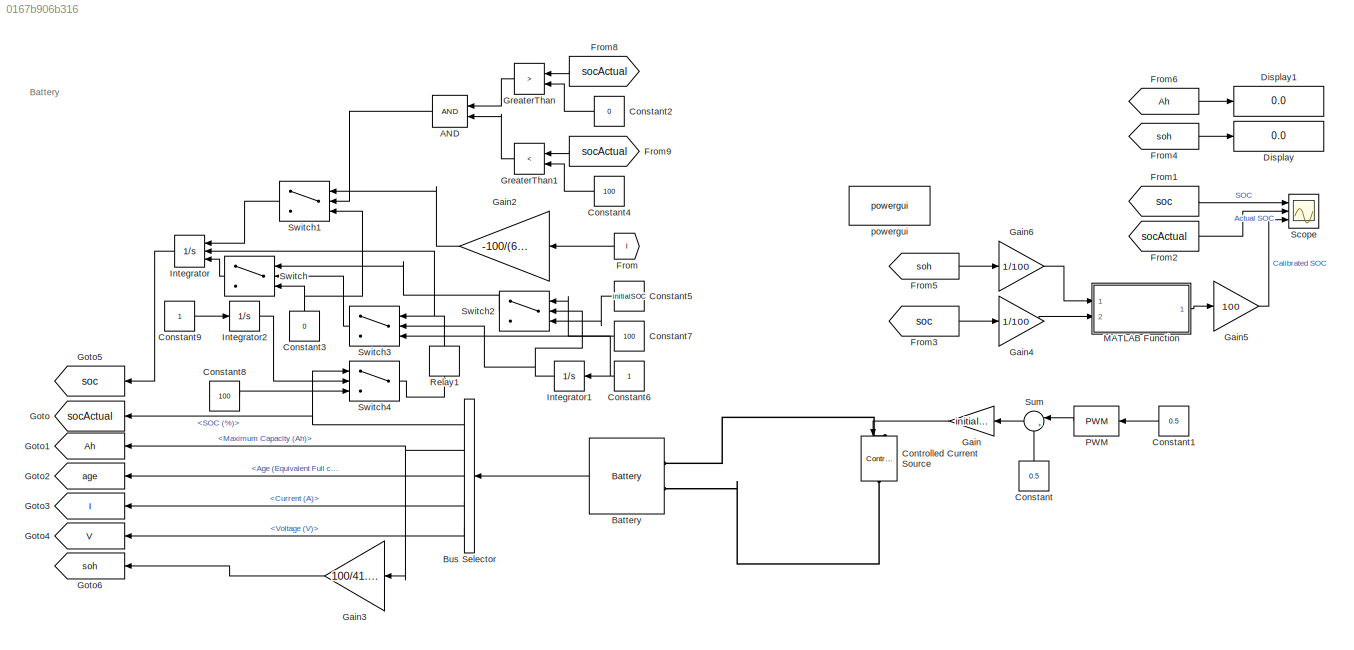
MODEL slx_0167b906b316
KIND model
CONFIG AbsTol = auto
CONFIG EnableMultiTasking = off
CONFIG FixedStep = auto
CONFIG MaxStep = auto
CONFIG MinStep = auto
CONFIG RelTol = 1e-3
CONFIG SampleTimeConstraint = Unconstrained
CONFIG SolverName = VariableStepAuto
CONFIG StartTime = 0.0
CONFIG StopTime = 60*30*5
BLOCK [Logic] AND
  AllPortsSameDT = off
  IconShape = distinctive
  NameLocation = top
  OutDataTypeStr = boolean
  Ports = [2, 1]
BLOCK [Reference] Battery  REF=spsBatteryLib/Battery
  Ports = [0, 1, 0, 0, 0, 2]
  SourceBlock = spsBatteryLib/Battery
  SourceProductBaseCode = PS
  SourceType = Battery
BLOCK [BusSelector] Bus Selector
  NameLocation = top
  OutputSignals = SOC (%),Maximum Capacity  (Ah),Age (Equivalent Full cycles),Current (A),Voltage (V)
  Ports = [1, 5]
BLOCK [Constant] Constant
  NameLocation = right
  SampleTime = T
  Value = 0.5
BLOCK [Constant] Constant1
  NameLocation = top
  SampleTime = T
  Value = 0.5
BLOCK [Constant] Constant2
  NameLocation = top
  SampleTime = T
  Value = 0
BLOCK [Constant] Constant3
  NameLocation = right
  SampleTime = T
  Value = 0
BLOCK [Constant] Constant4
  NameLocation = top
  SampleTime = T
  Value = 100
BLOCK [Constant] Constant5
  NameLocation = top
  SampleTime = T
  Value = initialSOC
BLOCK [Constant] Constant6
  NameLocation = top
  SampleTime = T
BLOCK [Constant] Constant7
  NameLocation = top
  SampleTime = T
  Value = 100
BLOCK [Constant] Constant8
  SampleTime = T
  Value = 100
BLOCK [Constant] Constant9
  SampleTime = T
BLOCK [Reference] Controlled Current Source  REF=spsControlledCurrentSourceLib/Controlled Current Source
  NameLocation = top
  Ports = [1, 0, 0, 0, 0, 1, 1]
  SourceBlock = spsControlledCurrentSourceLib/Controlled Current Source
  SourceProductBaseCode = PS
  SourceType = Controlled Current Source
BLOCK [Display] Display
  Decimation = 1
  Ports = [1]
BLOCK [Display] Display1
  Decimation = 1
  Ports = [1]
BLOCK [From] From
  GotoTag = I
  NameLocation = top
BLOCK [From] From1
  GotoTag = soc
  NameLocation = top
BLOCK [From] From2
  GotoTag = socActual
  NameLocation = top
BLOCK [From] From3
  GotoTag = soc
  NameLocation = top
BLOCK [From] From4
  GotoTag = soh
  NameLocation = top
BLOCK [From] From5
  GotoTag = soh
  NameLocation = top
BLOCK [From] From6
  GotoTag = Ah
  NameLocation = top
BLOCK [From] From8
  GotoTag = socActual
BLOCK [From] From9
  GotoTag = socActual
BLOCK [Gain] Gain
  Gain = initialCurrent
  NameLocation = top
BLOCK [Gain] Gain2
  Gain = -100/(60*60*40)
BLOCK [Gain] Gain3
  Gain = 100/41.36
  NameLocation = top
BLOCK [Gain] Gain4
  Gain = 1/100
BLOCK [Gain] Gain5
  Gain = 100
BLOCK [Gain] Gain6
  Gain = 1/100
BLOCK [Goto] Goto
  GotoTag = socActual
  NameLocation = top
BLOCK [Goto] Goto1
  GotoTag = Ah
  NameLocation = top
BLOCK [Goto] Goto2
  GotoTag = age
  NameLocation = top
BLOCK [Goto] Goto3
  GotoTag = I
  NameLocation = top
BLOCK [Goto] Goto4
  GotoTag = V
  NameLocation = top
BLOCK [Goto] Goto5
  GotoTag = soc
BLOCK [Goto] Goto6
  GotoTag = soh
  NameLocation = top
BLOCK [RelationalOperator] GreaterThan
  InputSameDT = off
  NameLocation = top
  Operator = >
  OutDataTypeStr = boolean
  Ports = [2, 1]
  RndMeth = Simplest
BLOCK [RelationalOperator] GreaterThan1
  InputSameDT = off
  NameLocation = top
  Operator = <
  OutDataTypeStr = boolean
  Ports = [2, 1]
  RndMeth = Simplest
BLOCK [Integrator] Integrator
  ExternalReset = either
  InitialCondition = 100
  InitialConditionSource = external
  LowerSaturationLimit = 0
  Ports = [3, 1]
  UpperSaturationLimit = 36.49*60*60
BLOCK [Integrator] Integrator1
  NameLocation = top
  Ports = [1, 1]
BLOCK [Integrator] Integrator2
  Ports = [1, 1]
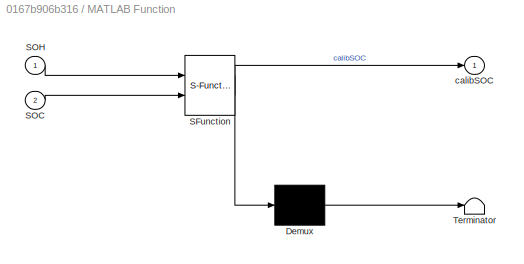
BLOCK [SubSystem] MATLAB Function
  ErrorFcn = Stateflow.Translate.translate
  PermitHierarchicalResolution = ExplicitOnly
  Ports = [2, 1]
  RequestExecContextInheritance = off
  SFBlockType = MATLAB Function
  TreatAsAtomicUnit = on
BLOCK [Demux] MATLAB Function/ Demux 
  Outputs = 1
  Ports = [1, 1]
BLOCK [S-Function] MATLAB Function/ SFunction 
  EnableBusSupport = on
  FunctionName = sf_sfun
  PortCounts = [2 2]
  Ports = [2, 2]
  SFcnIsStateOwnerBlock = off
  SFunctionDeploymentMode = off
  Tag = Stateflow S-Function 2
BLOCK [Terminator] MATLAB Function/ Terminator 
BLOCK [Inport] MATLAB Function/SOC
  Port = 2
BLOCK [Inport] MATLAB Function/SOH
BLOCK [Outport] MATLAB Function/calibSOC
BLOCK [Reference] PWM  REF=simulink/Discontinuities/PWM
  DisableCoverage = on
  NameLocation = top
  Ports = [1, 1]
  SourceBlock = simulink/Discontinuities/PWM
  SourceProductBaseCode = SL
  SourceType = PWM
BLOCK [Relay] Relay1
  NameLocation = right
  OffSwitchValue = 0.0001
  OnSwitchValue = 99.9999
BLOCK [Scope] Scope
  Floating = off
  NumInputPorts = 3
  Ports = [3]
  ScopeSpecificationString = Simulink.scopes.TimeScopeBlockCfg('CurrentConfiguration', extmgr.ConfigurationSet(extmgr.Configuration('Core','General UI',true),extmgr.Configuration('Core','Source UI',true),extmgr.Configuration('Sources','WiredSimulink',true),extmgr.Configuration('Visuals','Time Domain',true,'SerializedDisplays',{struct('MinYLimReal','-12.5','MaxYLimReal','112.5','YLabelReal','','MinYLimMag','0.00000','MaxYLimMa...<+1459ch>
BLOCK [Sum] Sum
  Inputs = |+-
  NameLocation = top
  Ports = [2, 1]
BLOCK [Switch] Switch
  Criteria = u2 ~= 0
  InputSameDT = off
  SaturateOnIntegerOverflow = off
  Threshold = 0.5
BLOCK [Switch] Switch1
  Criteria = u2 > Threshold
  InputSameDT = off
  SaturateOnIntegerOverflow = off
  Threshold = 0.5
BLOCK [Switch] Switch2
  Criteria = u2 ~= 0
  InputSameDT = off
  SaturateOnIntegerOverflow = off
BLOCK [Switch] Switch3
  Criteria = u2 ~= 0
  InputSameDT = off
  SaturateOnIntegerOverflow = off
BLOCK [Switch] Switch4
  Criteria = u2 ~= 0
  InputSameDT = off
  NameLocation = top
  SaturateOnIntegerOverflow = off
BLOCK [Reference] powergui  REF=spspowerguiLib/powergui
  Ports = []
  Priority = 1
  SourceBlock = spspowerguiLib/powergui
  SourceProductBaseCode = PS
  SourceType = PSB option menu block
ANNOTATION (root): Battery
LINE AND:1 -> Switch1:2
LINE Battery:1 -> Bus Selector:1
NET Bus Selector:1 -> Goto:1, Switch4:1
NET Bus Selector:2 -> Gain3:1, Goto1:1
LINE Bus Selector:3 -> Goto2:1
LINE Bus Selector:4 -> Goto3:1
LINE Bus Selector:5 -> Goto4:1
LINE Constant1:1 -> PWM:1
LINE Constant2:1 -> GreaterThan:2
NET Constant3:1 -> Switch1:3, Switch:3
LINE Constant4:1 -> GreaterThan1:2
LINE Constant5:1 -> Switch2:3
NET Constant6:1 -> Integrator1:1, Switch3:3
LINE Constant7:1 -> Switch2:1
LINE Constant8:1 -> Switch4:3
LINE Constant9:1 -> Integrator2:1
LINE Constant:1 -> Sum:2
LINE From1:1 -> Scope:1
LINE From2:1 -> Scope:2
LINE From3:1 -> Gain4:1
LINE From4:1 -> Display:1
LINE From5:1 -> Gain6:1
LINE From6:1 -> Display1:1
LINE From8:1 -> GreaterThan:1
LINE From9:1 -> GreaterThan1:1
LINE From:1 -> Gain2:1
LINE Gain2:1 -> Switch1:1
LINE Gain3:1 -> Goto6:1
LINE Gain4:1 -> MATLAB Function:2
LINE Gain5:1 -> Scope:3
LINE Gain6:1 -> MATLAB Function:1
LINE Gain:1 -> Controlled Current Source:1
LINE GreaterThan1:1 -> AND:2
LINE GreaterThan:1 -> AND:1
NET Integrator1:1 -> Switch2:2, Switch3:2
LINE Integrator2:1 -> Switch4:2
LINE Integrator:1 -> Goto5:1
LINE MATLAB Function:1 -> Gain5:1
LINE PWM:1 -> Sum:1
NET Relay1:1 -> Integrator:2, Switch3:1
LINE Sum:1 -> Gain:1
LINE Switch1:1 -> Integrator:1
LINE Switch2:1 -> Switch:1
LINE Switch3:1 -> Switch:2
LINE Switch4:1 -> Relay1:1
LINE Switch:1 -> Integrator:3
PLINE Battery:LConn1 -- Controlled Current Source:LConn1
PLINE Battery:LConn2 -- Controlled Current Source:RConn1
note: NET lines group one-source signal fan-out (src -> all destinations, sorted); 1:1 wires keep LINE
CHART MATLAB Function states=1 transitions=1
  STATE_LABEL 'eML_blk_kernel()'
  STATE_LABEL 'SCRIPT:\nfunction calibSOC = fcn(SOH, SOC)\npersistent bChange\n\nSOC_MARGIN = 0.01;\nbSOH = SOH;\n\nif isempty(bChange)\n   bChange = 0;\nend\n\n% change detect\nif SOC<=(0.0+SOC_MARGIN)\n    bChange = +1;% rising from 0% SOC\nelseif SOC>=(1.0-SOC_MARGIN)\n    bChange = -1;% falling from 100% SOC\nend\n\n% SOC Calibration\n% For falling from 100% SOC    : newSOC = (SOC-(1-SOH))/SOH\n% For rising from 0% SOC       : ...<+267ch>'
CHART  states=0 transitions=0
